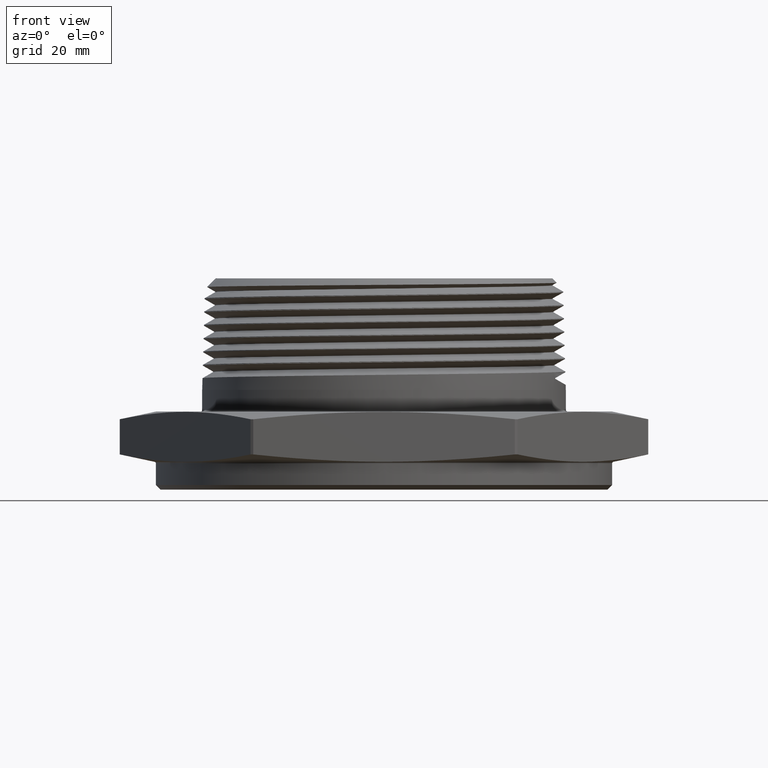
[diagram: clean part render]
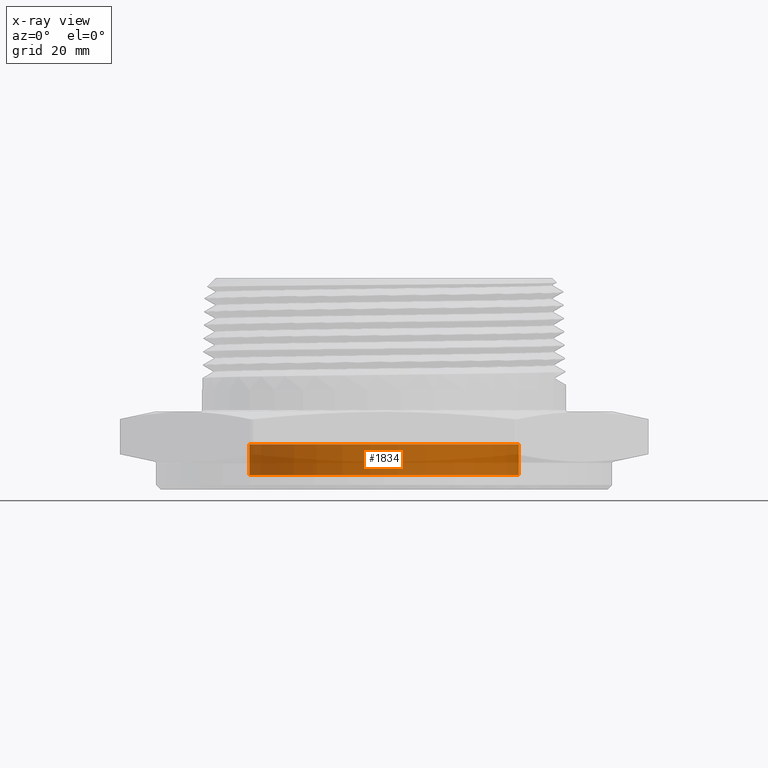
[diagram: x-ray — body ghosted, one internal face saturated and labeled with its STEP entity id]
A machine part, front view, then the same camera in x-ray: the body is ghosted and one INTERNAL B-rep face — a face not visible from any outside direction — is saturated and labeled: STEP entity #1834.
In plain terms, the highlighted cylindrical surface (partial cylindrical patch) has radius 22.352 mm, axis along (-0, -0, -1).
Its self-contained STEP definition (entity closure, byte-faithful):
#1375 = AXIS2_PLACEMENT_3D ( 'NONE', #3411, #3412, #3410 ) ;
#1442 = AXIS2_PLACEMENT_3D ( 'NONE', #7428, #7429, #7430 ) ;
#1443 = AXIS2_PLACEMENT_3D ( 'NONE', #7433, #7434, #7435 ) ;
#1507 = VERTEX_POINT ( 'NONE', #7591 ) ;
#1526 = VERTEX_POINT ( 'NONE', #7057 ) ;
#1527 = VERTEX_POINT ( 'NONE', #7038 ) ;
#1535 = VERTEX_POINT ( 'NONE', #6970 ) ;
#1656 = EDGE_LOOP ( 'NONE', ( #6823, #6822, #6845, #6821 ) ) ;
#1834 = ADVANCED_FACE ( 'NONE', ( #7654 ), #7664, .T. ) ;
#3410 = DIRECTION ( 'NONE',  ( -1.000000000000000000, 0.0000000000000000000, 0.0000000000000000000 ) ) ;
#3411 = CARTESIAN_POINT ( 'NONE',  ( 6.884040249687191000E-018, 0.0000000000000000000, 0.1160000000000000100 ) ) ;
#3412 = DIRECTION ( 'NONE',  ( -0.0000000000000000000, -0.0000000000000000000, -1.000000000000000000 ) ) ;
#4003 = EDGE_CURVE ( 'NONE', #1535, #1526, #7837, .T. ) ;
#4006 = EDGE_CURVE ( 'NONE', #1507, #1527, #7842, .T. ) ;
#4007 = EDGE_CURVE ( 'NONE', #1507, #1535, #7841, .T. ) ;
#4008 = EDGE_CURVE ( 'NONE', #1527, #1526, #7845, .T. ) ;
#6821 = ORIENTED_EDGE ( 'NONE', *, *, #4008, .T. ) ;
#6822 = ORIENTED_EDGE ( 'NONE', *, *, #4007, .F. ) ;
#6823 = ORIENTED_EDGE ( 'NONE', *, *, #4003, .F. ) ;
#6845 = ORIENTED_EDGE ( 'NONE', *, *, #4006, .T. ) ;
#6970 = CARTESIAN_POINT ( 'NONE',  ( 0.8800000000000000000, 1.077689183249670900E-016, 0.1160000000000000100 ) ) ;
#7038 = CARTESIAN_POINT ( 'NONE',  ( -0.8800000000000000000, 0.0000000000000000000, -0.08400000000000001900 ) ) ;
#7057 = CARTESIAN_POINT ( 'NONE',  ( 0.8800000000000000000, 1.077689183249670900E-016, -0.08400000000000001900 ) ) ;
#7418 = CARTESIAN_POINT ( 'NONE',  ( 0.8800000000000000000, 1.077689183249670900E-016, 0.1160000000000000100 ) ) ;
#7419 = DIRECTION ( 'NONE',  ( -0.0000000000000000000, -0.0000000000000000000, -1.000000000000000000 ) ) ;
#7420 = CARTESIAN_POINT ( 'NONE',  ( -0.8800000000000000000, 0.0000000000000000000, 0.1160000000000000100 ) ) ;
#7421 = DIRECTION ( 'NONE',  ( -0.0000000000000000000, -0.0000000000000000000, -1.000000000000000000 ) ) ;
#7428 = CARTESIAN_POINT ( 'NONE',  ( 6.884040249687191000E-018, 0.0000000000000000000, 0.1160000000000000100 ) ) ;
#7429 = DIRECTION ( 'NONE',  ( 0.0000000000000000000, 0.0000000000000000000, 1.000000000000000000 ) ) ;
#7430 = DIRECTION ( 'NONE',  ( 1.000000000000000000, 0.0000000000000000000, 0.0000000000000000000 ) ) ;
#7433 = CARTESIAN_POINT ( 'NONE',  ( 6.884040249687191000E-018, 0.0000000000000000000, -0.08400000000000001900 ) ) ;
#7434 = DIRECTION ( 'NONE',  ( 0.0000000000000000000, 0.0000000000000000000, 1.000000000000000000 ) ) ;
#7435 = DIRECTION ( 'NONE',  ( 1.000000000000000000, 0.0000000000000000000, 0.0000000000000000000 ) ) ;
#7591 = CARTESIAN_POINT ( 'NONE',  ( -0.8800000000000000000, 0.0000000000000000000, 0.1160000000000000100 ) ) ;
#7654 = FACE_OUTER_BOUND ( 'NONE', #1656, .T. ) ;
#7664 = CYLINDRICAL_SURFACE ( 'NONE', #1375, 0.8800000000000000000 ) ;
#7837 = LINE ( 'NONE', #7418, #7840 ) ;
#7840 = VECTOR ( 'NONE', #7419, 39.37007874015748100 ) ;
#7841 = CIRCLE ( 'NONE', #1442, 0.8800000000000000000 ) ;
#7842 = LINE ( 'NONE', #7420, #7844 ) ;
#7844 = VECTOR ( 'NONE', #7421, 39.37007874015748100 ) ;
#7845 = CIRCLE ( 'NONE', #1443, 0.8800000000000000000 ) ;